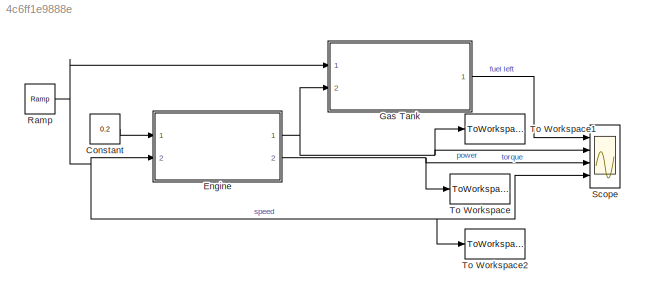
MODEL slx_4c6ff1e9888e
KIND model
CONFIG AbsTol = auto
CONFIG EnableMultiTasking = off
CONFIG FixedStep = auto
CONFIG MaxStep = auto
CONFIG MinStep = auto
CONFIG RelTol = 1e-3
CONFIG SampleTimeConstraint = Unconstrained
CONFIG Solver = VariableStepAuto
CONFIG SolverName = VariableStepAuto
CONFIG StartTime = 0.0
CONFIG StopTime = 600
BLOCK [Constant] Constant
  Value = 0.2
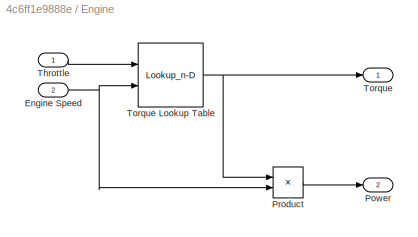
BLOCK [SubSystem] Engine
  Ports = [2, 2]
  RequestExecContextInheritance = off
BLOCK [Inport] Engine/Engine Speed
  IconDisplay = Port number
  Port = 2
BLOCK [Outport] Engine/Power
  IconDisplay = Port number
  Port = 2
BLOCK [Product] Engine/Product
  InputSameDT = off
  OutDataTypeStr = Inherit: Inherit via internal rule
  Ports = [2, 1]
  RndMeth = Floor
  SaturateOnIntegerOverflow = off
BLOCK [Inport] Engine/Throttle
  IconDisplay = Port number
BLOCK [Outport] Engine/Torque
  IconDisplay = Port number
BLOCK [Lookup_n-D] Engine/Torque Lookup Table
  BreakpointsForDimension1 = map_throttle
  BreakpointsForDimension2 = map_spd
  InternalRulePriority = Speed
  Ports = [2, 1]
  RndMeth = Simplest
  Table = map_trq
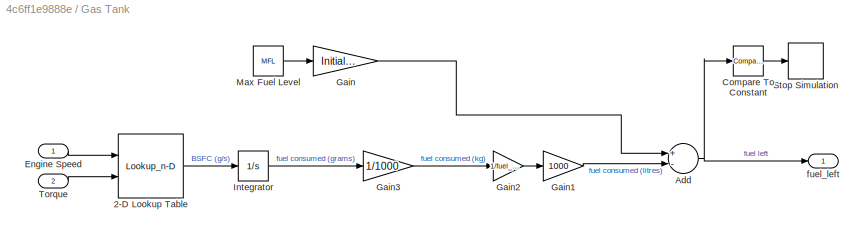
BLOCK [SubSystem] Gas Tank
  Ports = [2, 1]
  RequestExecContextInheritance = off
BLOCK [Lookup_n-D] Gas Tank/2-D Lookup Table
  BreakpointsForDimension1 = fuelmap_spd
  BreakpointsForDimension2 = fuelmap_trq
  InternalRulePriority = Speed
  Ports = [2, 1]
  RndMeth = Simplest
  Table = fuelmap_fuel
BLOCK [Sum] Gas Tank/Add
  InputSameDT = off
  Inputs = +-
  OutDataTypeStr = Inherit: Inherit via internal rule
  Ports = [2, 1]
  SaturateOnIntegerOverflow = off
BLOCK [Reference] Gas Tank/Compare To Constant  REF=simulink/Logic and Bit
Operations/Compare
To Constant
  Ports = [1, 1]
  SourceBlock = simulink/Logic and Bit\nOperations/Compare\nTo Constant
  SourceProductBaseCode = SL
  SourceProductName = Simulink
  SourceType = Compare To Constant
BLOCK [Inport] Gas Tank/Engine Speed
  IconDisplay = Port number
BLOCK [Gain] Gas Tank/Gain
  Gain = Initial_FL
  OutDataTypeStr = Inherit: Inherit via internal rule
  ParamDataTypeStr = Inherit: Inherit via internal rule
  SaturateOnIntegerOverflow = off
BLOCK [Gain] Gas Tank/Gain1
  Gain = 1000
  OutDataTypeStr = Inherit: Inherit via internal rule
  ParamDataTypeStr = Inherit: Inherit via internal rule
  SaturateOnIntegerOverflow = off
BLOCK [Gain] Gas Tank/Gain2
  Gain = 1/fuel_density
  OutDataTypeStr = Inherit: Inherit via internal rule
  ParamDataTypeStr = Inherit: Inherit via internal rule
  SaturateOnIntegerOverflow = off
BLOCK [Gain] Gas Tank/Gain3
  Gain = 1/1000
  OutDataTypeStr = Inherit: Inherit via internal rule
  ParamDataTypeStr = Inherit: Inherit via internal rule
  SaturateOnIntegerOverflow = off
BLOCK [Integrator] Gas Tank/Integrator
  Ports = [1, 1]
BLOCK [Constant] Gas Tank/Max Fuel Level
  Value = MFL
BLOCK [Stop] Gas Tank/Stop Simulation
BLOCK [Inport] Gas Tank/Torque
  IconDisplay = Port number
  Port = 2
BLOCK [Outport] Gas Tank/fuel_left
  IconDisplay = Port number
BLOCK [Reference] Ramp  REF=simulink/Sources/Ramp
  Ports = [0, 1]
  SourceBlock = simulink/Sources/Ramp
  SourceProductBaseCode = SL
  SourceProductName = Simulink
  SourceType = Ramp
BLOCK [Scope] Scope
  Floating = off
  NumInputPorts = 4
  Ports = [4]
  ScopeSpecificationString = Simulink.scopes.TimeScopeBlockCfg('CurrentConfiguration', extmgr.ConfigurationSet(extmgr.Configuration('Core','General UI',true),extmgr.Configuration('Core','Source UI',true),extmgr.Configuration('Sources','WiredSimulink',true),extmgr.Configuration('Visuals','Time Domain',true),extmgr.Configuration('Tools','Plot Navigation',true),extmgr.Configuration('Tools','Measurements',true)),'Version','2018a'...<+1ch>
BLOCK [ToWorkspace] To Workspace
  FixptAsFi = on
  MaxDataPoints = inf
  Ports = [1]
  SampleTime = -1
  Save2DSignal = 3-D array (concatenate along third dimension)
  SaveFormat = Timeseries
  VariableName = Power
BLOCK [ToWorkspace] To Workspace1
  FixptAsFi = on
  MaxDataPoints = inf
  Ports = [1]
  SampleTime = -1
  Save2DSignal = 3-D array (concatenate along third dimension)
  SaveFormat = Timeseries
  VariableName = Torque
BLOCK [ToWorkspace] To Workspace2
  FixptAsFi = on
  MaxDataPoints = inf
  Ports = [1]
  SampleTime = -1
  Save2DSignal = 3-D array (concatenate along third dimension)
  SaveFormat = Timeseries
  VariableName = Speed
LINE Constant:1 -> Engine:1
NET Engine/Engine Speed:1 -> Engine/Product:2, Engine/Torque Lookup Table:2
LINE Engine/Product:1 -> Engine/Power:1
LINE Engine/Throttle:1 -> Engine/Torque Lookup Table:1
NET Engine/Torque Lookup Table:1 -> Engine/Product:1, Engine/Torque:1
NET Engine:1 -> Gas Tank:2, Scope:2, To Workspace1:1
NET Engine:2 -> Scope:3, To Workspace:1
LINE Gas Tank/2-D Lookup Table:1 -> Gas Tank/Integrator:1
NET Gas Tank/Add:1 -> Gas Tank/Compare To Constant:1, Gas Tank/fuel_left:1
LINE Gas Tank/Compare To Constant:1 -> Gas Tank/Stop Simulation:1
LINE Gas Tank/Engine Speed:1 -> Gas Tank/2-D Lookup Table:1
LINE Gas Tank/Gain1:1 -> Gas Tank/Add:2
LINE Gas Tank/Gain2:1 -> Gas Tank/Gain1:1
LINE Gas Tank/Gain3:1 -> Gas Tank/Gain2:1
LINE Gas Tank/Gain:1 -> Gas Tank/Add:1
LINE Gas Tank/Integrator:1 -> Gas Tank/Gain3:1
LINE Gas Tank/Max Fuel Level:1 -> Gas Tank/Gain:1
LINE Gas Tank/Torque:1 -> Gas Tank/2-D Lookup Table:2
LINE Gas Tank:1 -> Scope:1
NET Ramp:1 -> Engine:2, Gas Tank:1, Scope:4, To Workspace2:1
note: NET lines group one-source signal fan-out (src -> all destinations, sorted); 1:1 wires keep LINE
